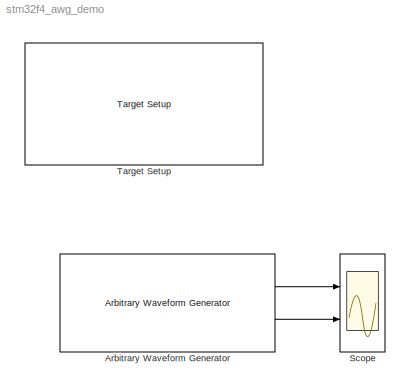
MODEL stm32f4_awg_demo
KIND model
CONFIG InitFcn = w1 = [1 1.5 2 2.5];
CONFIG PreLoadFcn = waijung.modelPreload; % Required for working with Waijung Blockset. Do not remove.
BLOCK [Reference] Arbitrary Waveform Generator  REF=stm32f4_dac_lib/Arbitrary Waveform Generator
  Ports = [0, 2]
  SourceBlock = stm32f4_dac_lib/Arbitrary Waveform Generator
  SourceType = stm32f4_dmadac
  advancedsettings = on
  apb = 1
  blockid = ArbitraryWaveformGenerator
  chmat = [1  2]
  cinputportlabel = Signal1, Signal2
  coutputportlabel = out1, out2
  dac1address = 40007408
  dac1dor = {0,615,1230,1845,2460}
  dac1dor_length = 5
  dac1on = on
  dac1val = [0 0.5 1 1.5 2]
  dac2address = 40007414
  dac2dor = {3075,2460,1845,1230,0}
  dac2dor_length = 5
  dac2on = on
  dac2val = [2.5 2 1.5 1 0]
  dacalignment = DAC_Align_12b_R
  dacbuffer = Disable
  dacbufferstr = DAC_OutputBuffer_Disable
  dacmode = DAC2
  dmamodestr = DMA_Mode_Circular
  enablecustomportlabel = off
  endaction = Loop Data
  inputtype = Volts (double)
  inputtypestr = Volts
  pinmat = [2 4 5]
  pinstr = [\"GPIO_Pin_4 | GPIO_Pin_5\"]
  portpinstr = A4,A5
  portstr = [\"A\"]
  sampletime = 0.00001
  sampletimestr = 1e-005
  simulation = on
  timarr = 1679
  timer = 6
  timprescale = 0
  vref = 3.3
BLOCK [Scope] Scope
  DataFormat = StructureWithTime
  Floating = off
  NumInputPorts = 2
  Ports = [2]
  SampleTime = 0
  YMax = 5~5
  YMin = -5~-5
BLOCK [Reference] Target Setup  REF=stm32f4_device_config_lib/Target Setup
  Ports = []
  Priority = 100
  SourceBlock = stm32f4_device_config_lib/Target Setup
  SourceType = stm32f4_target_setup
  assemblercontrolstr = $(patsubst %, -I%, .) -mcpu=cortex-m4 -mthumb -mthumb-interwork -mfloat-abi=hard -mfpu=fpv4-sp-d16 -ffast-math -Wall -Wextra -Ofast -Wa,-amhls=$(<:.s=.lst) -D__STACK_SIZE=$(STACK_SIZE) -D__HEAP_SIZE=$(HEAP_SIZE)
  blockid = TargetSetup
  clockconfig = HSEOSC-8MHz
  compiler = GNU ARM
  compilercontrolstr = $(patsubst %, -I%, .) -mcpu=cortex-m4 -mthumb -mthumb-interwork -mfloat-abi=hard -mfpu=fpv4-sp-d16 -ffast-math -Wall -Wextra -Ofast
  editctrlstr = on
  enableautocompiledownload = on
  execprofile = None
  flashlength = 1024k
  flashorigin = 0x8000000
  fullchiperase = off
  hclk = 168000000
  heapsize = 0x200
  hseval = 8000000
  lastprofileruart = 1
  linkercontrolstr = -T$(LD_SCRIPT) -g -Wl,-Map=$(MAP),--cref,--no-warn-mismatch -mcpu=cortex-m4 -mthumb -mthumb-interwork -mfloat-abi=hard -mfpu=fpv4-sp-d16 -specs=nosys.specs
  manualsetsampletime = off
  mcu = STM32F417IG (LQFP176)
  mcustr = STM32F417IG
  previous_compiler = GNU ARM
  profilerbaud = 115200
  profilerinitstr = 1e-005,168000000,1680,115200,0
  profilertxpin = D8
  profileruart = 1
  programmerinterface = ST-Link
  ramlength = 128k
  ramorigin = 0x20000000
  runafterdownload = on
  sampletime = 1e-005
  showmemoryconfiguration = off
  stacksize = 0x400
  system_stm32f4xx_c_path = <path>
  systickreloadvalue = 1680
  useextram = off
LINE Arbitrary Waveform Generator:1 -> Scope:1
LINE Arbitrary Waveform Generator:2 -> Scope:2
note: 1 file-system path scrubbed to <path> (not preserved elsewhere — flat text is the only slx artifact)
